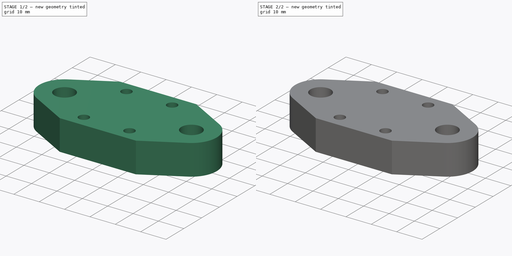
[diagram: build sequence overview — one tinted view per stage of 2, left to right]
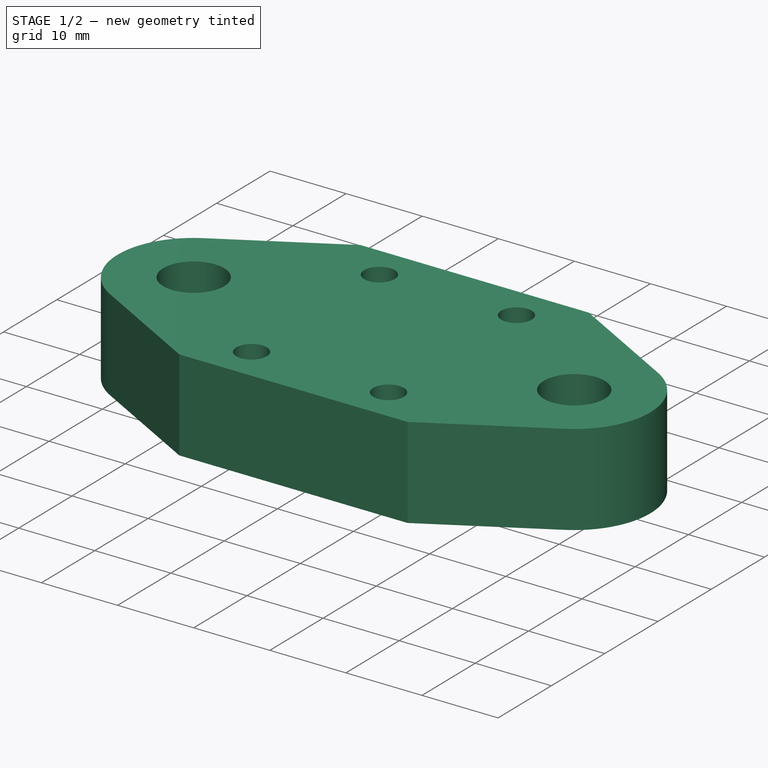
[diagram: stage 1 of 2 — iso view after this stage's code; geometry added in this stage tinted green]
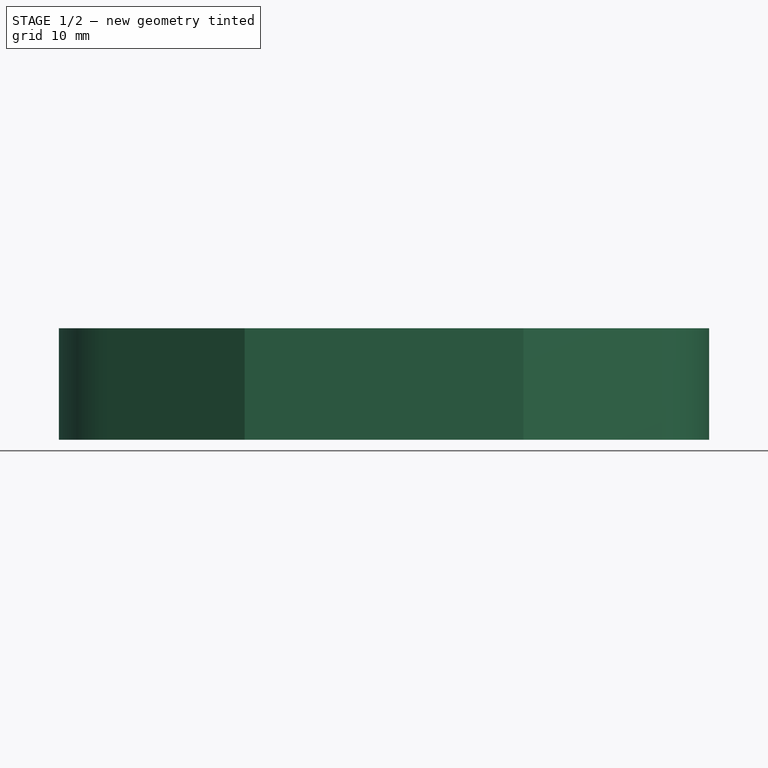
[diagram: stage 1 of 2 — front view after this stage's code; geometry added in this stage tinted green]
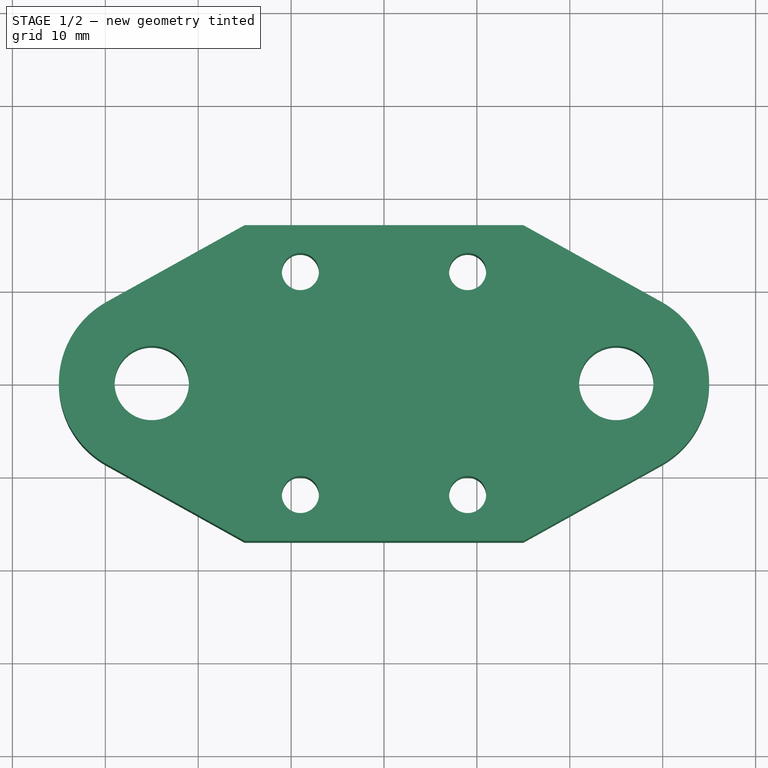
[diagram: stage 1 of 2 — top view after this stage's code; geometry added in this stage tinted green]
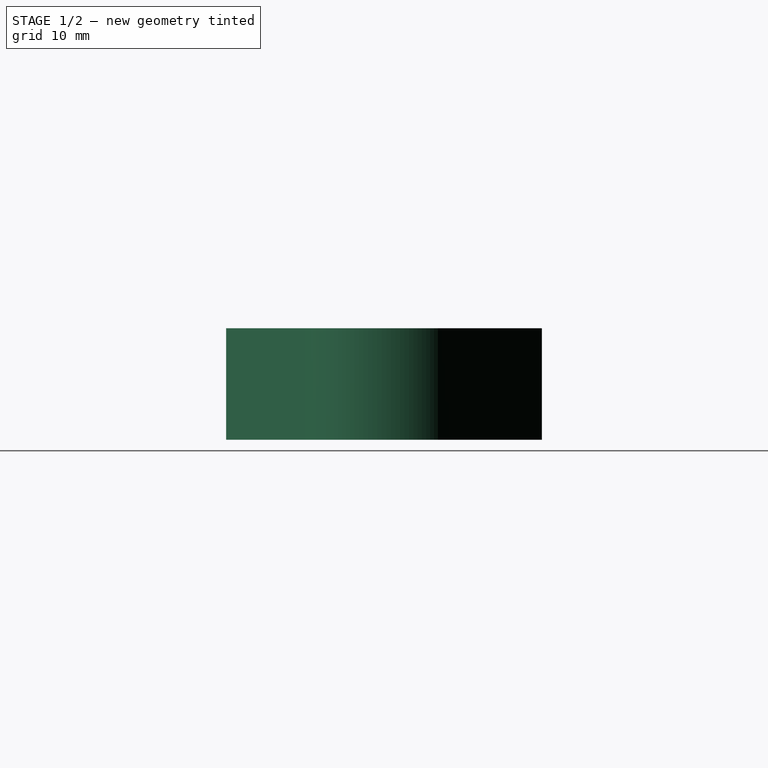
[diagram: stage 1 of 2 — right view after this stage's code; geometry added in this stage tinted green]
FCSTD DOCUMENT  (FreeCAD 0.18R15969 (Git))
Label: car.adapter
License: All rights reserved
LicenseURL: http://en.wikipedia.org/wiki/All_rights_reserved
objects: Sketcher::SketchObject×2, PartDesign::Pad×1, PartDesign::Pocket×1, PartDesign::Body×1
note: 7 computed .brp shape members not serialized (recipe doc carries the construction recipe); baked Part::Feature solids carry a one-line shape summary decoded from their .brp

FEATURE [Sketcher::SketchObject] Sketch
  MapMode = 5
  Support = -> [XY_Plane]
  sketch-geometry (28):
    g0: Circle CenterX=-25 CenterY=0 CenterZ=0 NormalX=0 NormalY=0 NormalZ=1 AngleXU=0 Radius=4
    g1: Circle CenterX=25 CenterY=0 CenterZ=0 NormalX=0 NormalY=0 NormalZ=1 AngleXU=0 Radius=4
    g2: LineSegment [constr] StartX=-9 StartY=-12 StartZ=0 EndX=9 EndY=-12 EndZ=0
    g3: LineSegment [constr] StartX=9 StartY=-12 StartZ=0 EndX=9 EndY=12 EndZ=0
    g4: LineSegment [constr] StartX=9 StartY=12 StartZ=0 EndX=-9 EndY=12 EndZ=0
    g5: LineSegment [constr] StartX=-9 StartY=12 StartZ=0 EndX=-9 EndY=-12 EndZ=0
    g6: LineSegment [constr] StartX=0 StartY=0 StartZ=0 EndX=-9 EndY=12 EndZ=0
    g7: LineSegment [constr] StartX=0 StartY=0 StartZ=0 EndX=9 EndY=12 EndZ=0
    g8: LineSegment [constr] StartX=0 StartY=0 StartZ=0 EndX=-9 EndY=-12 EndZ=0
    g9: Circle CenterX=-9 CenterY=12 CenterZ=0 NormalX=0 NormalY=0 NormalZ=1 AngleXU=0 Radius=2
    g10: Circle CenterX=9 CenterY=12 CenterZ=0 NormalX=0 NormalY=0 NormalZ=1 AngleXU=0 Radius=2
    g11: Circle CenterX=9 CenterY=-12 CenterZ=0 NormalX=0 NormalY=0 NormalZ=1 AngleXU=0 Radius=2
    g12: Circle CenterX=-9 CenterY=-12 CenterZ=0 NormalX=0 NormalY=0 NormalZ=1 AngleXU=0 Radius=2
    g13: LineSegment StartX=-15 StartY=17 StartZ=0 EndX=15 EndY=17 EndZ=0
    g14: LineSegment [constr] StartX=15 StartY=17 StartZ=0 EndX=15 EndY=-17 EndZ=0
    g15: LineSegment StartX=15 StartY=-17 StartZ=0 EndX=-15 EndY=-17 EndZ=0
    g16: LineSegment [constr] StartX=-15 StartY=-17 StartZ=0 EndX=-15 EndY=17 EndZ=0
    g17: LineSegment [constr] StartX=0 StartY=0 StartZ=0 EndX=-15 EndY=17 EndZ=0
    g18: LineSegment [constr] StartX=0 StartY=0 StartZ=0 EndX=15 EndY=17 EndZ=0
    g19: LineSegment [constr] StartX=0 StartY=0 StartZ=0 EndX=-15 EndY=-17 EndZ=0
    g20: LineSegment [constr] StartX=-25 StartY=0 StartZ=0 EndX=0 EndY=0 EndZ=0
    g21: LineSegment [constr] StartX=0 StartY=0 StartZ=0 EndX=25 EndY=0 EndZ=0
    g22: LineSegment StartX=-15 StartY=17 StartZ=0 EndX=-29.8586 EndY=8.74036 EndZ=0
    g23: LineSegment StartX=-15 StartY=-17 StartZ=0 EndX=-29.8586 EndY=-8.74036 EndZ=0
    g24: LineSegment StartX=15 StartY=-17 StartZ=0 EndX=29.8586 EndY=-8.74036 EndZ=0
    g25: LineSegment StartX=15 StartY=17 StartZ=0 EndX=29.8586 EndY=8.74036 EndZ=0
    g26: ArcOfCircle CenterX=-25 CenterY=0 CenterZ=0 NormalX=0 NormalY=0 NormalZ=1 AngleXU=0 Radius=10 StartAngle=2.07814 EndAngle=4.20504
    g27: ArcOfCircle CenterX=25 CenterY=0 CenterZ=0 NormalX=0 NormalY=0 NormalZ=1 AngleXU=0 Radius=10 StartAngle=5.21974 EndAngle=7.34663
  constraints (66):
    c: PointOnObject(g0,g-1)
    c: PointOnObject(g1,g-1)
    c: Radius(g0) = 4
    c: Equal(g0,g1)
    c: Coincident(g2,g3)
    c: Coincident(g3,g4)
    c: Coincident(g4,g5)
    c: Coincident(g5,g2)
    c: Horizontal(g2)
    c: Horizontal(g4)
    c: Vertical(g3)
    c: Vertical(g5)
    c: Coincident(g6,g-1)
    c: Coincident(g6,g4)
    c: Coincident(g7,g-1)
    c: Coincident(g7,g3)
    c: Coincident(g8,g-1)
    c: Coincident(g8,g2)
    c: Equal(g7,g6)
    c: Equal(g6,g8)
    c: Coincident(g9,g4)
    c: Coincident(g10,g3)
    c: Coincident(g11,g2)
    c: Coincident(g12,g2)
    c: Radius(g9) = 2
    c: Equal(g9,g10)
    c: Equal(g9,g11)
    c: Equal(g9,g12)
    c: Coincident(g13,g14)
    c: Coincident(g14,g15)
    c: Coincident(g15,g16)
    c: Coincident(g16,g13)
    c: Horizontal(g13)
    c: Horizontal(g15)
    c: Vertical(g14)
    c: Vertical(g16)
    c: DistanceX(g13,g13) = 30
    c: DistanceY(g16,g16) = 34
    c: Coincident(g17,g-1)
    c: Coincident(g17,g13)
    c: Coincident(g18,g-1)
    c: Coincident(g18,g13)
    c: Coincident(g19,g-1)
    c: Coincident(g19,g15)
    c: Equal(g19,g17)
    c: Equal(g17,g18)
    c: DistanceX(g4,g4) = 18
    c: DistanceY(g5,g5) = 24
    c: Coincident(g20,g0)
    c: Coincident(g20,g-1)
    c: Coincident(g21,g-1)
    c: Coincident(g21,g1)
    c: Equal(g20,g21)
    c: DistanceX(g20,g20) = 25
    c: Coincident(g22,g13)
    c: Coincident(g23,g15)
    c: Coincident(g24,g15)
    c: Coincident(g25,g13)
    c: Tangent(g22,g26) = -1.5708
    c: Tangent(g23,g26) = 1.5708
    c: Tangent(g25,g27) = 1.5708
    c: Tangent(g24,g27) = -1.5708
    c: Coincident(g26,g0)
    c: Coincident(g27,g1)
    c: Equal(g26,g27)
    c: Radius(g26) = 10
FEATURE [PartDesign::Pad] Pad
  Length = 12
  Length2 = 100
  Profile = -> Sketch
  Refine = true
  Type = 0
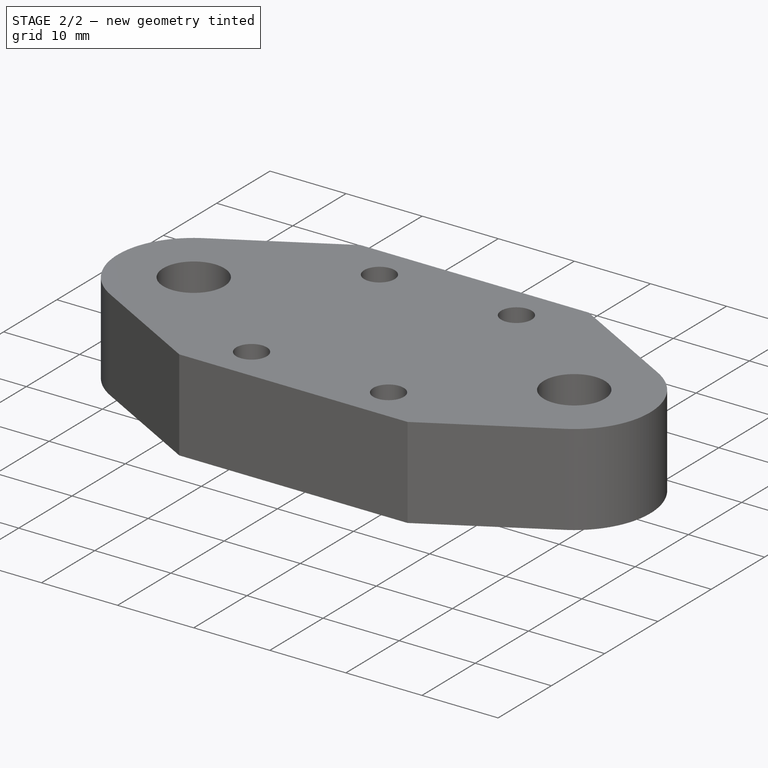
[diagram: stage 2 of 2 — iso view after this stage's code; geometry added in this stage tinted green]
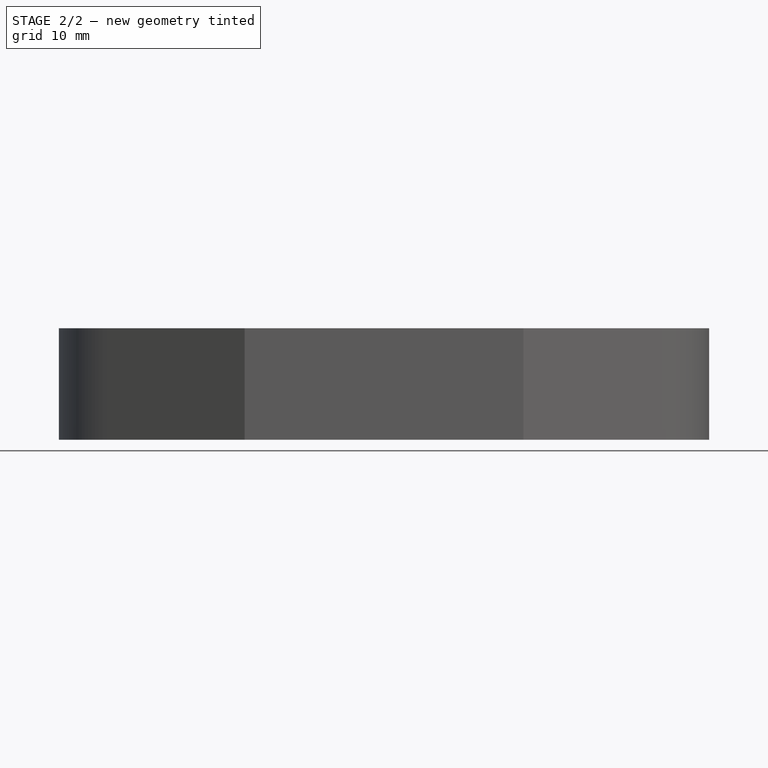
[diagram: stage 2 of 2 — front view after this stage's code; geometry added in this stage tinted green]
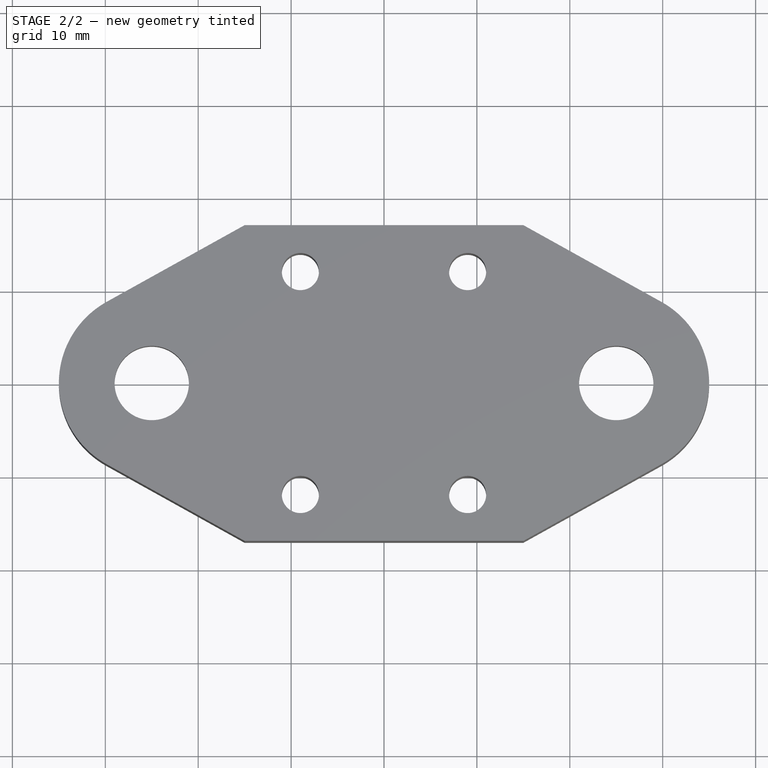
[diagram: stage 2 of 2 — top view after this stage's code; geometry added in this stage tinted green]
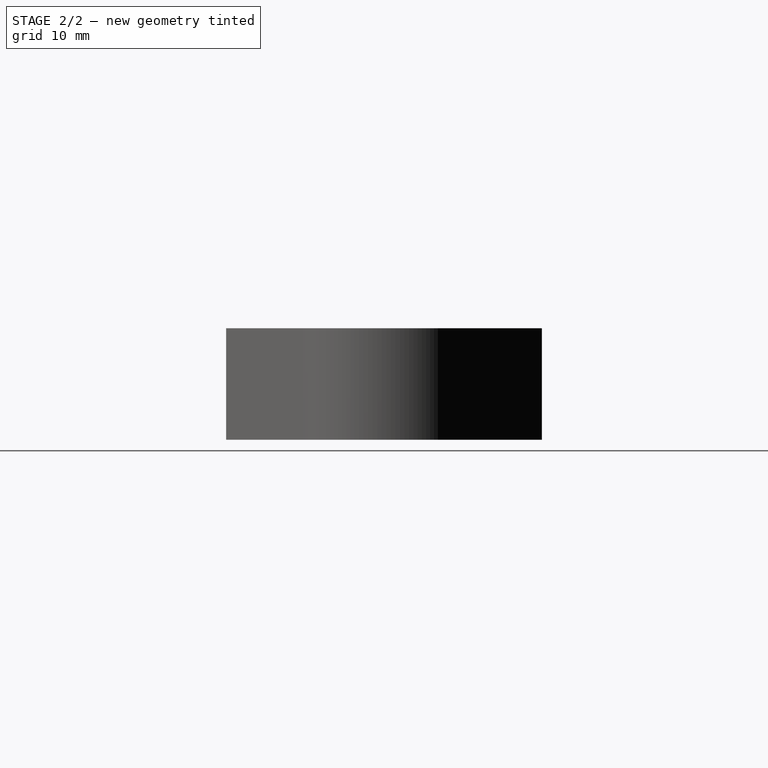
[diagram: stage 2 of 2 — right view after this stage's code; geometry added in this stage tinted green]
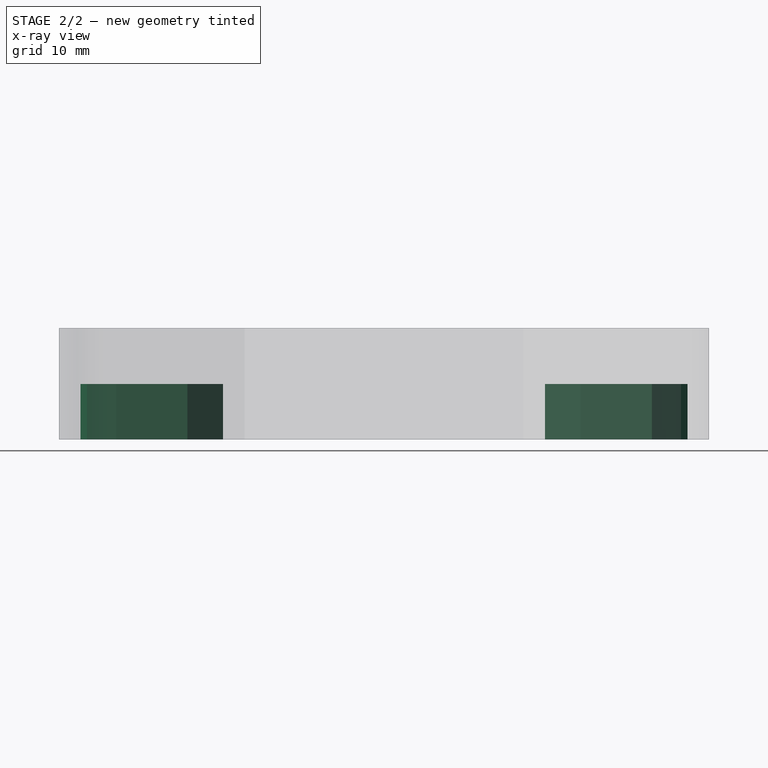
[diagram: stage 2 of 2 — x-ray composite at the front view; earlier geometry ghosted, this stage's added geometry solid]
FEATURE [Sketcher::SketchObject] Sketch001
  ExternalGeometry = -> [Pad]
  MapMode = 5
  Placement = pos=(0,0,0) rot=(1,0,0;3.14159rad)
  Support = -> [Pad]
  sketch-geometry (14):
    g0: LineSegment StartX=-28.8394 StartY=6.65 StartZ=0 EndX=-32.6788 EndY=0 EndZ=0
    g1: LineSegment StartX=-32.6788 StartY=0 StartZ=0 EndX=-28.8394 EndY=-6.65 EndZ=0
    g2: LineSegment StartX=-28.8394 StartY=-6.65 StartZ=0 EndX=-21.1606 EndY=-6.65 EndZ=0
    g3: LineSegment StartX=-21.1606 StartY=-6.65 StartZ=0 EndX=-17.3212 EndY=0 EndZ=0
    g4: LineSegment StartX=-17.3212 StartY=-2e-16 StartZ=0 EndX=-21.1606 EndY=6.65 EndZ=0
    g5: LineSegment StartX=-21.1606 StartY=6.65 StartZ=0 EndX=-28.8394 EndY=6.65 EndZ=0
    g6: Circle [constr] CenterX=-25 CenterY=0 CenterZ=0 NormalX=0 NormalY=0 NormalZ=1 AngleXU=0 Radius=7.67876
    g7: LineSegment StartX=17.3212 StartY=0 StartZ=0 EndX=21.1606 EndY=-6.65 EndZ=0
    g8: LineSegment StartX=21.1606 StartY=-6.65 StartZ=0 EndX=28.8394 EndY=-6.65 EndZ=0
    g9: LineSegment StartX=28.8394 StartY=-6.65 StartZ=0 EndX=32.6788 EndY=0 EndZ=0
    g10: LineSegment StartX=32.6788 StartY=0 StartZ=0 EndX=28.8394 EndY=6.65 EndZ=0
    g11: LineSegment StartX=28.8394 StartY=6.65 StartZ=0 EndX=21.1606 EndY=6.65 EndZ=0
    g12: LineSegment StartX=21.1606 StartY=6.65 StartZ=0 EndX=17.3212 EndY=0 EndZ=0
    g13: Circle [constr] CenterX=25 CenterY=0 CenterZ=0 NormalX=0 NormalY=0 NormalZ=1 AngleXU=0 Radius=7.67876
  constraints (32):
    c: Coincident(g0,g1)
    c: Coincident(g1,g2)
    c: Coincident(g2,g3)
    c: Coincident(g3,g4)
    c: Coincident(g4,g5)
    c: Coincident(g5,g0)
    c: Equal(g0, g1-g5) x5
    c: PointOnObject(g0,g6)
    c: PointOnObject(g1,g6)
    c: PointOnObject(g2,g6)
    c: PointOnObject(g3,g6)
    c: PointOnObject(g4,g6)
    c: PointOnObject(g5,g6)
    c: Coincident(g6,g-3)
    c: Coincident(g7,g8)
    c: Coincident(g8,g9)
    c: Coincident(g9,g10)
    c: Coincident(g10,g11)
    c: Coincident(g11,g12)
    c: Coincident(g12,g7)
    c: Equal(g7, g8-g12) x5
    c: PointOnObject(g7,g13)
    c: PointOnObject(g8,g13)
    c: PointOnObject(g9,g13)
    c: PointOnObject(g10,g13)
    c: PointOnObject(g11,g13)
    c: PointOnObject(g12,g13)
    c: Coincident(g13,g-4)
    c: Horizontal(g11)
    c: Horizontal(g5)
    c: DistanceY(g1,g0) = 13.3
    c: Equal(g5,g11)
FEATURE [PartDesign::Pocket] Pocket
  BaseFeature = -> Pad
  Length = 6
  Length2 = 100
  Profile = -> Sketch001
  Refine = true
  Type = 0
FEATURE [PartDesign::Body] Body
  Group = -> [Sketch,Pad,Sketch001,Pocket]
  Origin = -> Origin
  Tip = -> Pocket
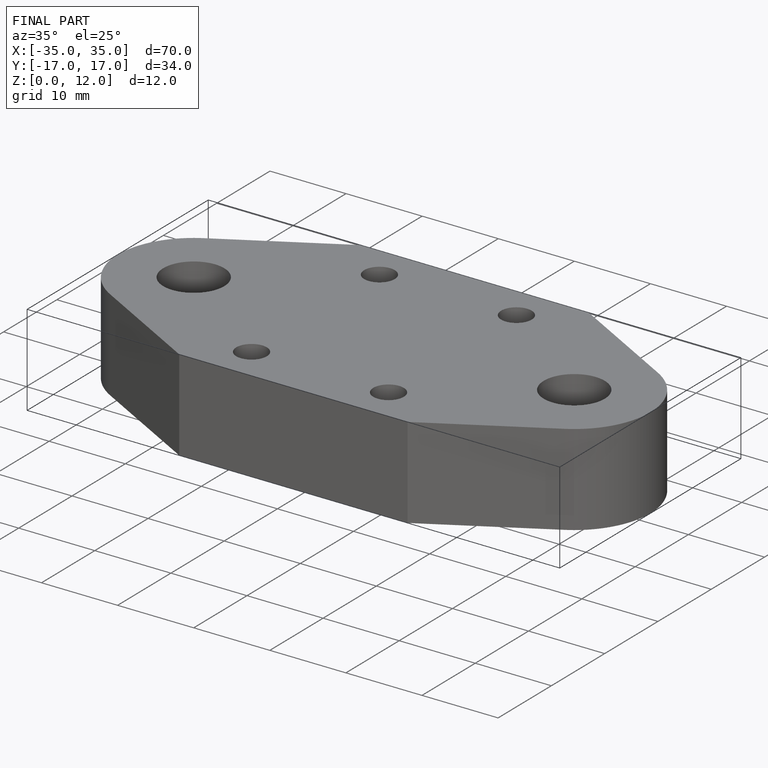
[diagram: finished part — iso view with bounding-box wireframe]
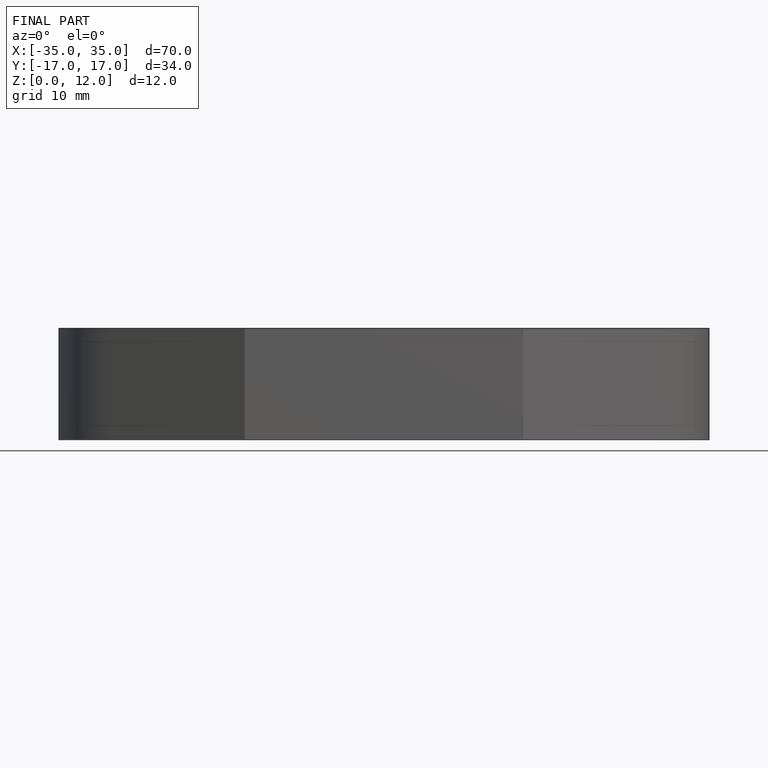
[diagram: finished part — front view with bounding-box wireframe]
